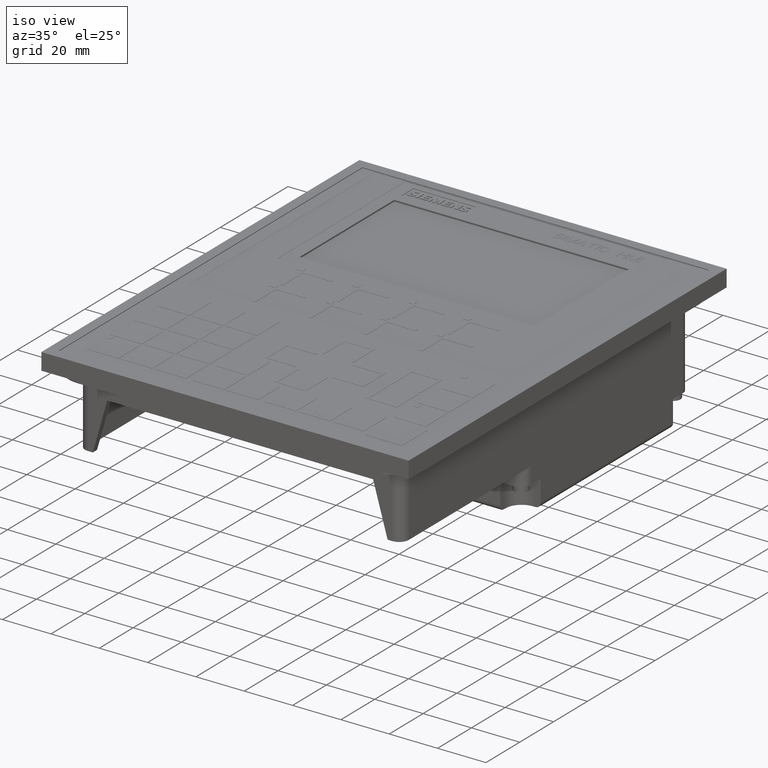
[diagram: clean part render]
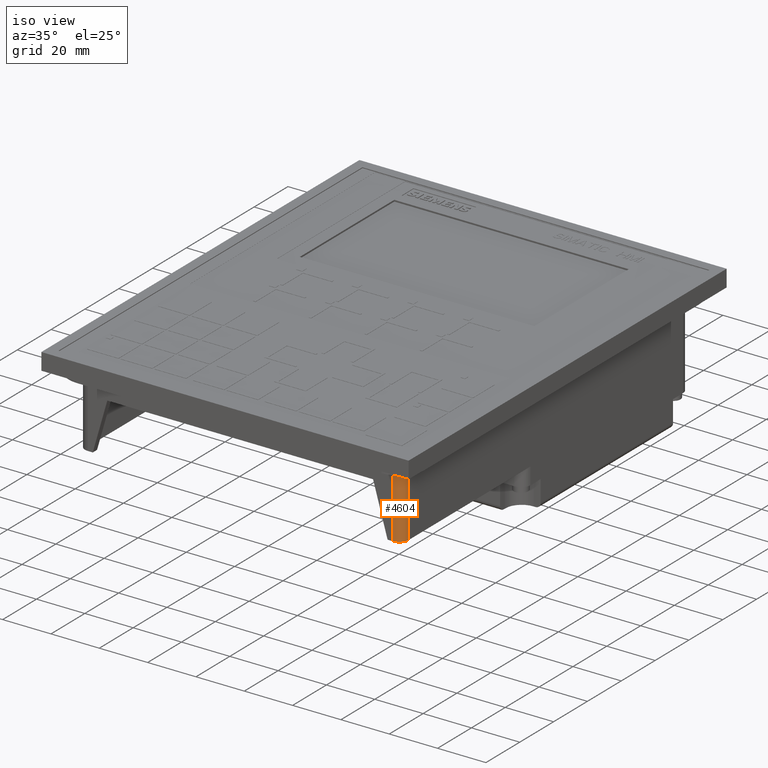
[diagram: same view with one face highlighted and labeled with its STEP entity id]
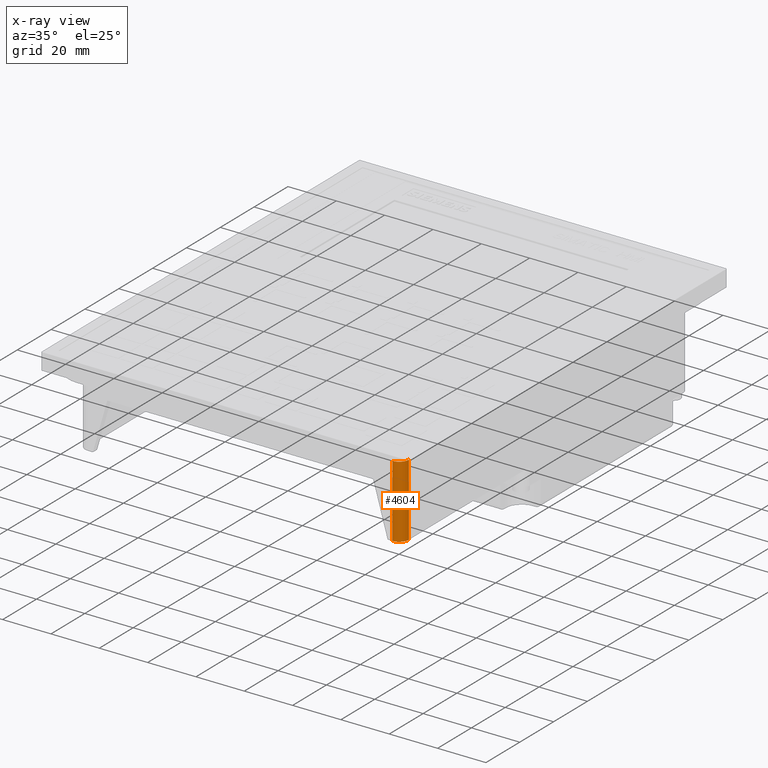
[diagram: x-ray of the same camera — body ghosted, the highlighted face saturated]
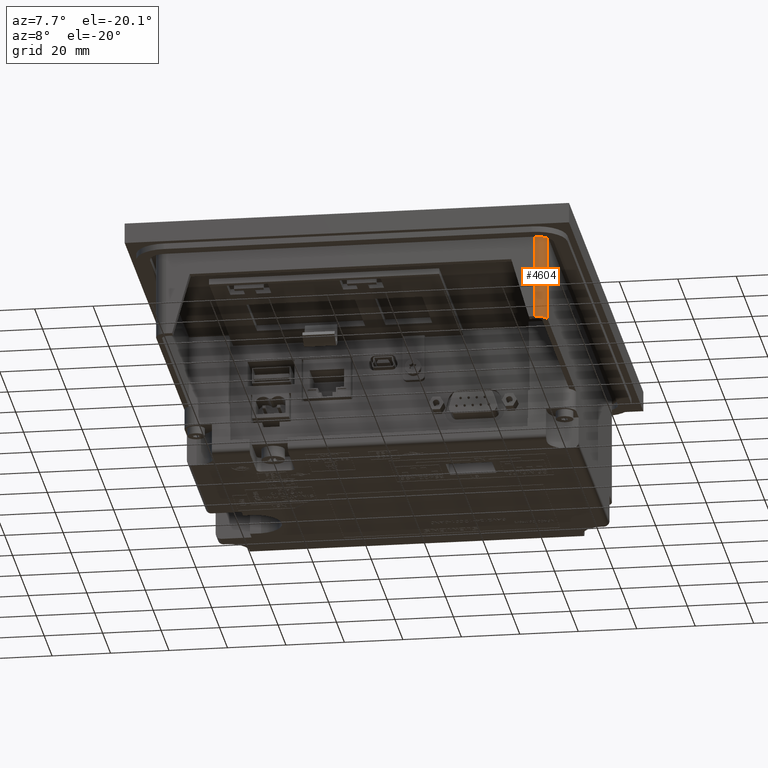
[diagram: same view with one face highlighted and labeled with its STEP entity id]
A machine part, iso view. The second image highlights one B-rep face of the part: STEP entity #4604.
The next image is the same camera in x-ray: the body ghosted, the highlighted face saturated — about 0% of this face is hidden behind the body in this view.
A second angle (auxiliary view) of the same face is appended — the face is thin or edge-on in the first view.
In plain terms, the highlighted cylindrical surface (edge-blend (fillet) strip) has radius 4 mm, axis along (0, 0, 1).
Its self-contained STEP definition (entity closure, byte-faithful):
#1064=CYLINDRICAL_SURFACE('',#50468,4.);
#1669=CIRCLE('',#50446,4.);
#1679=CIRCLE('',#50467,4.);
#4604=ADVANCED_FACE('',(#9605),#1064,.T.);
#9605=FACE_OUTER_BOUND('',#12140,.T.);
#12140=EDGE_LOOP('',(#15617,#15618,#15619,#15620));
#15617=ORIENTED_EDGE('',*,*,#32668,.F.);
#15618=ORIENTED_EDGE('',*,*,#32651,.F.);
#15619=ORIENTED_EDGE('',*,*,#32635,.T.);
#15620=ORIENTED_EDGE('',*,*,#32601,.T.);
#28190=VERTEX_POINT('',#65366);
#28191=VERTEX_POINT('',#65368);
#28216=VERTEX_POINT('',#65434);
#28228=VERTEX_POINT('',#65465);
#32601=EDGE_CURVE('',#28191,#28190,#39023,.T.);
#32635=EDGE_CURVE('',#28216,#28191,#1669,.T.);
#32651=EDGE_CURVE('',#28216,#28228,#39064,.T.);
#32668=EDGE_CURVE('',#28228,#28190,#1679,.T.);
#39023=LINE('',#65367,#44713);
#39064=LINE('',#65464,#44754);
#44713=VECTOR('',#53701,1.);
#44754=VECTOR('',#53780,1.);
#50446=AXIS2_PLACEMENT_3D('',#65433,#53755,#53756);
#50467=AXIS2_PLACEMENT_3D('',#65495,#53820,#53821);
#50468=AXIS2_PLACEMENT_3D('',#65496,#53822,#53823);
#53701=DIRECTION('',(0.,0.,1.));
#53755=DIRECTION('',(0.,0.,1.));
#53756=DIRECTION('',(-1.,0.,0.));
#53780=DIRECTION('',(0.,0.,1.));
#53820=DIRECTION('',(0.,0.,1.));
#53821=DIRECTION('',(-1.,0.,0.));
#53822=DIRECTION('',(0.,0.,1.));
#53823=DIRECTION('',(1.,0.,0.));
#65366=CARTESIAN_POINT('',(-67.,117.65,-6.));
#65367=CARTESIAN_POINT('',(-67.,117.65,-36.));
#65368=CARTESIAN_POINT('',(-67.,117.65,-36.));
#65433=CARTESIAN_POINT('',(-63.,117.65,-36.));
#65434=CARTESIAN_POINT('',(-63.,121.65,-36.));
#65464=CARTESIAN_POINT('',(-63.,121.65,-36.));
#65465=CARTESIAN_POINT('',(-63.,121.65,-6.));
#65495=CARTESIAN_POINT('',(-63.,117.65,-6.));
#65496=CARTESIAN_POINT('',(-63.,117.65,-36.));